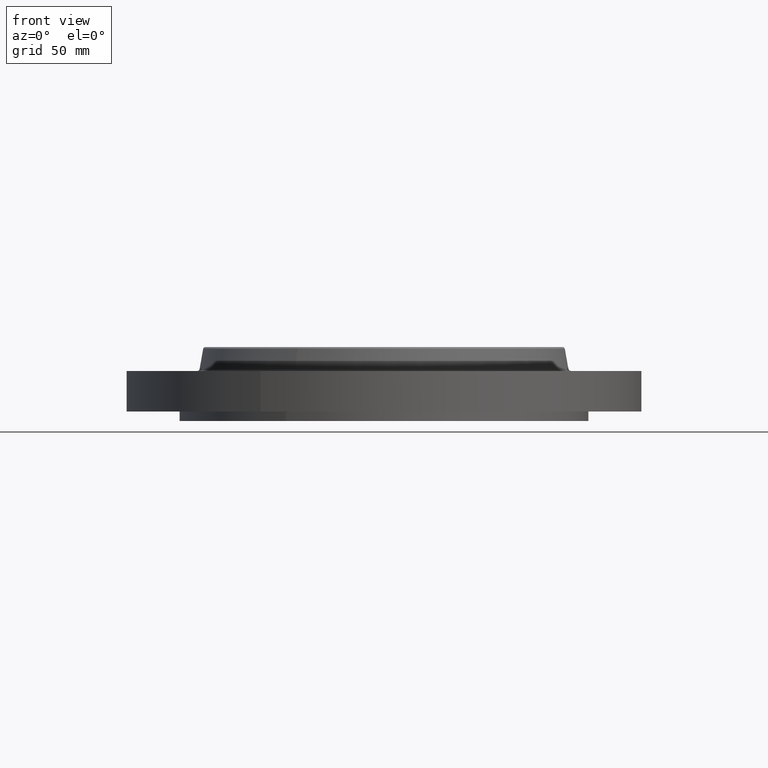
[diagram: clean part render]
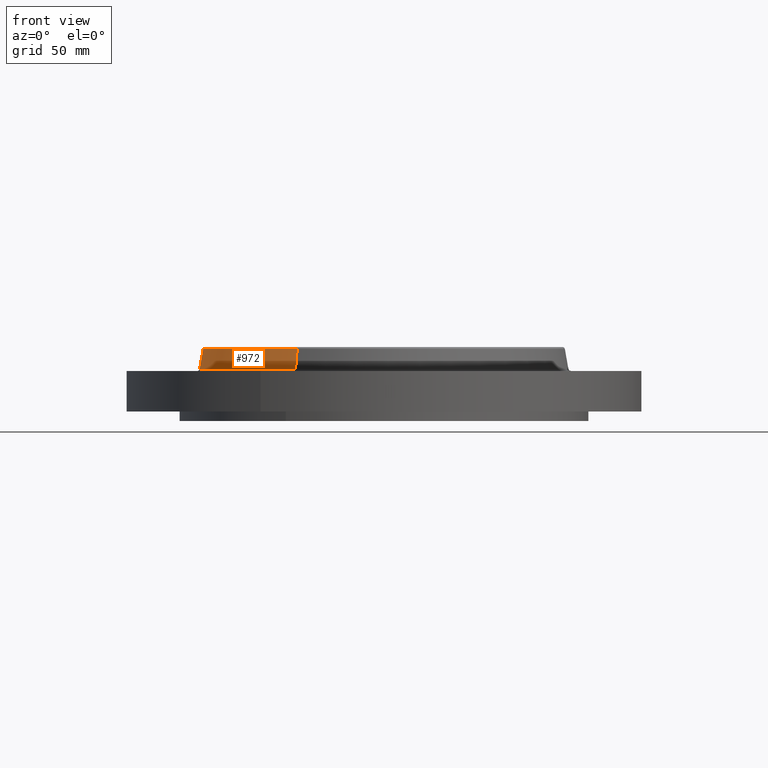
[diagram: same view with one face highlighted and labeled with its STEP entity id]
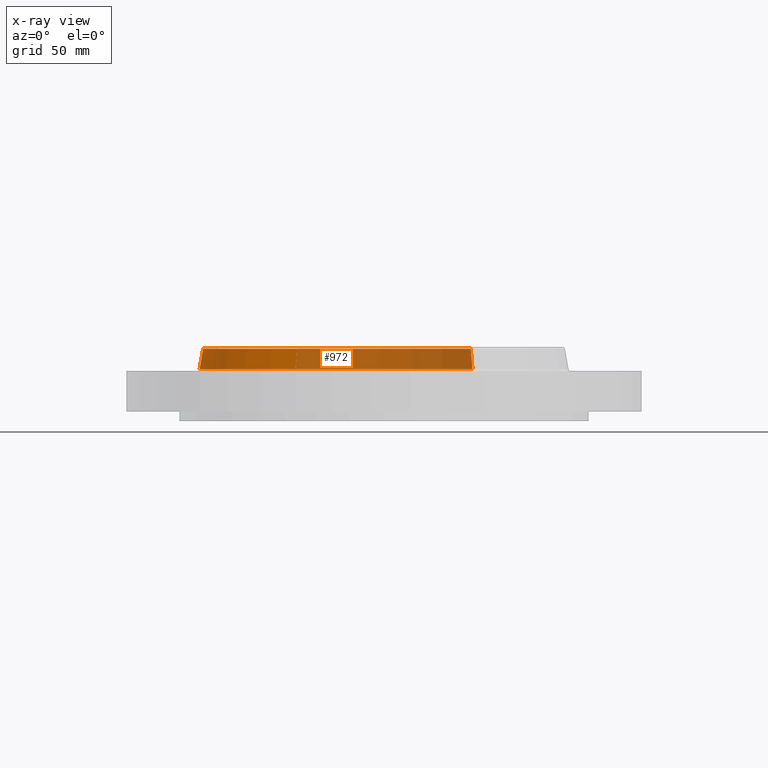
[diagram: x-ray of the same camera — body ghosted, the highlighted face saturated]
A machine part, front view. The second image highlights one B-rep face of the part: STEP entity #972.
The next image is the same camera in x-ray: the body ghosted, the highlighted face saturated — about 65% of this face is hidden behind the body in this view.
In plain terms, the highlighted conical surface has half-angle 10 deg.
Its self-contained STEP definition (entity closure, byte-faithful):
#877=AXIS2_PLACEMENT_3D('Circle Axis2P3D',#875,#876,$) ;
#933=AXIS2_PLACEMENT_3D('Cone Axis2P3D',#930,#931,#932) ;
#963=AXIS2_PLACEMENT_3D('Circle Axis2P3D',#961,#962,$) ;
#848=CARTESIAN_POINT('Vertex',(2.31862536286,4.24421525796,1.10958110934)) ;
#855=CARTESIAN_POINT('Vertex',(-2.31862536286,-4.24421525796,1.10958110934)) ;
#875=CARTESIAN_POINT('Axis2P3D Location',(0.,0.,1.10958110934)) ;
#930=CARTESIAN_POINT('Axis2P3D Location',(0.,0.,1.64041889067)) ;
#935=CARTESIAN_POINT('Line Origine',(2.29618800237,4.20314394509,1.37500000001)) ;
#939=CARTESIAN_POINT('Vertex',(2.27375064188,4.16207263221,1.64041889067)) ;
#946=CARTESIAN_POINT('Vertex',(-2.27375064188,-4.16207263221,1.64041889067)) ;
#949=CARTESIAN_POINT('Line Origine',(-2.29618800237,-4.20314394509,1.37500000001)) ;
#961=CARTESIAN_POINT('Axis2P3D Location',(0.,0.,1.64041889067)) ;
#876=DIRECTION('Axis2P3D Direction',(0.,0.,-0.0393700787402)) ;
#931=DIRECTION('Axis2P3D Direction',(0.,0.,-0.0393700787402)) ;
#932=DIRECTION('Axis2P3D XDirection',(-0.0188750212049,-0.0345504945626,0.)) ;
#936=DIRECTION('Vector Direction',(0.00327761303565,0.00599963041829,-0.03877195878)) ;
#950=DIRECTION('Vector Direction',(-0.00327761303565,-0.00599963041829,-0.03877195878)) ;
#962=DIRECTION('Axis2P3D Direction',(0.,0.,-0.0393700787402)) ;
#937=VECTOR('Line Direction',#936,0.0393700787402) ;
#951=VECTOR('Line Direction',#950,0.0393700787402) ;
#967=ORIENTED_EDGE('',*,*,#879,.F.) ;
#968=ORIENTED_EDGE('',*,*,#953,.T.) ;
#969=ORIENTED_EDGE('',*,*,#965,.T.) ;
#970=ORIENTED_EDGE('',*,*,#941,.F.) ;
#972=ADVANCED_FACE('PartBody',(#971),#934,.T.) ;
#878=CIRCLE('generated circle',#877,4.83625751271) ;
#964=CIRCLE('generated circle',#963,4.74265648948) ;
#934=CONICAL_SURFACE('Cone',#933,4.74265648948,0.174532925199) ;
#879=EDGE_CURVE('',#856,#849,#878,.T.) ;
#941=EDGE_CURVE('',#849,#940,#938,.F.) ;
#953=EDGE_CURVE('',#856,#947,#952,.F.) ;
#965=EDGE_CURVE('',#947,#940,#964,.T.) ;
#966=EDGE_LOOP('',(#967,#968,#969,#970)) ;
#971=FACE_OUTER_BOUND('',#966,.T.) ;
#938=LINE('Line',#935,#937) ;
#952=LINE('Line',#949,#951) ;
#849=VERTEX_POINT('',#848) ;
#856=VERTEX_POINT('',#855) ;
#940=VERTEX_POINT('',#939) ;
#947=VERTEX_POINT('',#946) ;